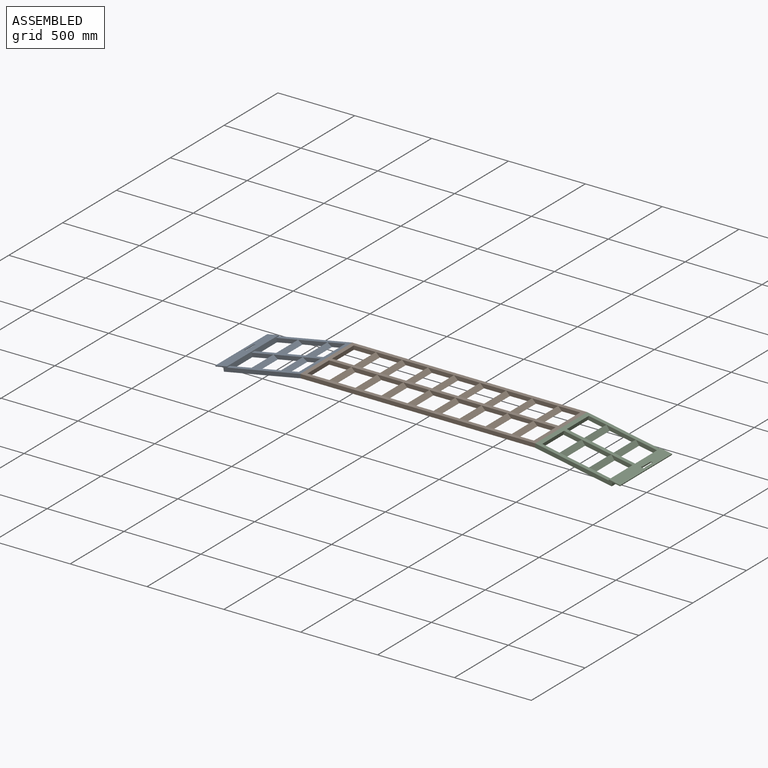
[diagram: assembled view]
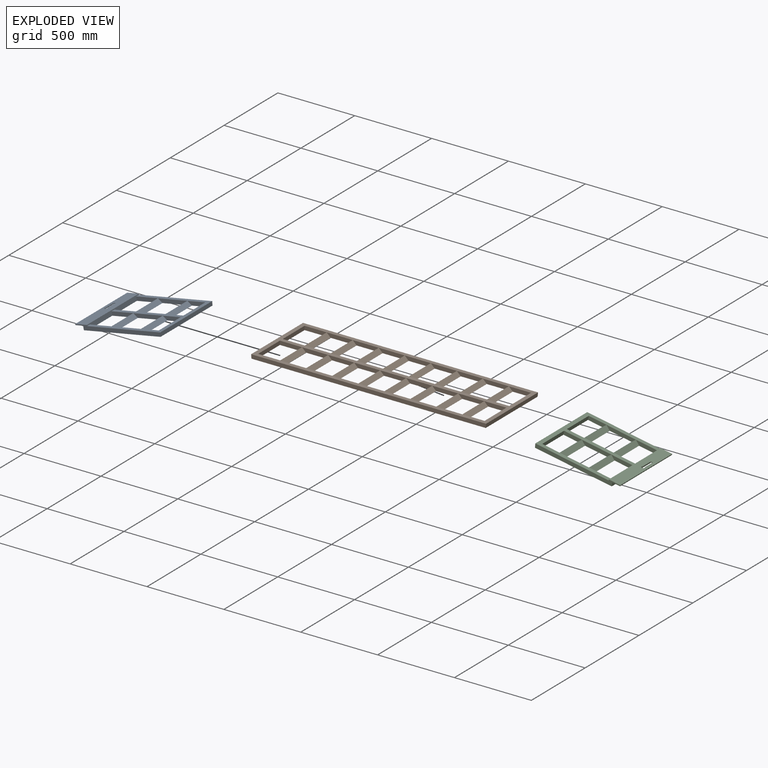
[diagram: exploded view]
GUIDED TOUR — MATED ASSEMBLY (Onshape document c1a81fce8c98519c7f79fda8, AutoMate assembly c1a81fce8c98519c7f79fda8_c8e239f8579a53e50d7dfe68_4918c3495864be379a82b760_default)

This assembly has 3 components, labeled P0..P2 below (a component is one placed occurrence of a part; the same part can appear more than once), held together by 2 mates. A mate is a constraint between two components; its type names the relative motion it leaves free:
  FASTENED — locks the two components together rigidly (no relative motion).
Axis/direction vectors are unit vectors and 'through' points are millimeter coordinates, both in the assembly's world frame.

MATES
  1. FASTENED "Fastened 1": P1 <-> P0, direction (-0.996, 0.000, -0.093) through (-655.75, 103.90, 14.36) mm
  2. FASTENED "Fastened 2": P1 <-> P2, direction (0.996, 0.000, -0.093) through (870.63, 103.90, 14.36) mm

ASSEMBLY ORDER
  1. P2 — the base component [order verified]
  2. P1 [order verified]
  3. P0 [order verified]
Order-tag legend:
  [order verified] — this step's position reverses a verified removal order: the component was checked to insert without passing through the ones already placed.

Of the 3 components, 3 carry the full construction recipe — the FeatureScript program that regenerates the part's solid from scratch; the rest are supplied as boundary geometry only.
Each toured component is shown spotlighted twice — in the assembled view, then in the exploded view, where a leader line traces a displaced component back to its assembled socket (saturated green if recipe-attached, orange if geometry-only; every other component desaturated gray) — followed by its recipe or geometry summary and the mates that hold it.
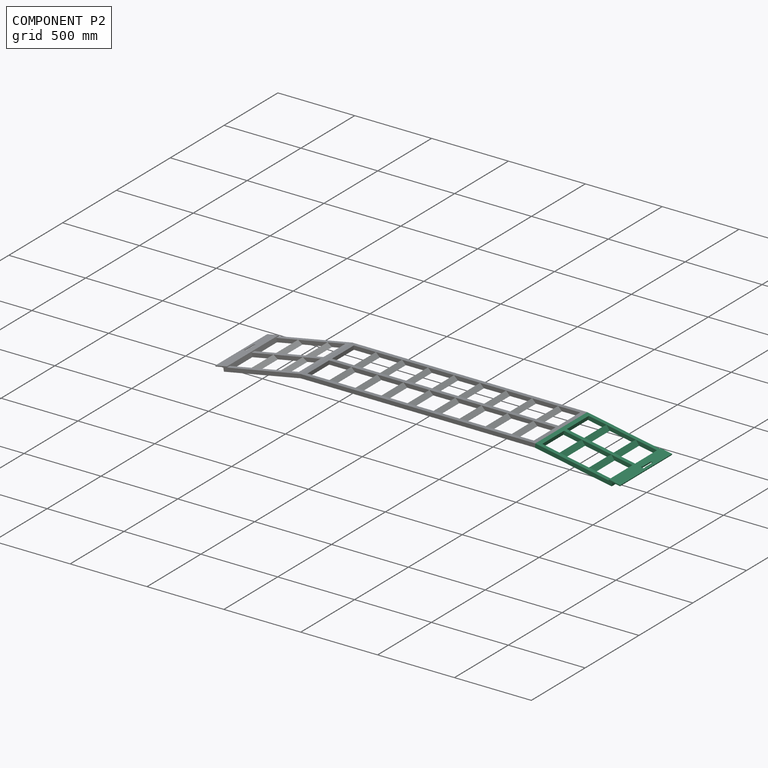
[diagram: component P2 — assembled]
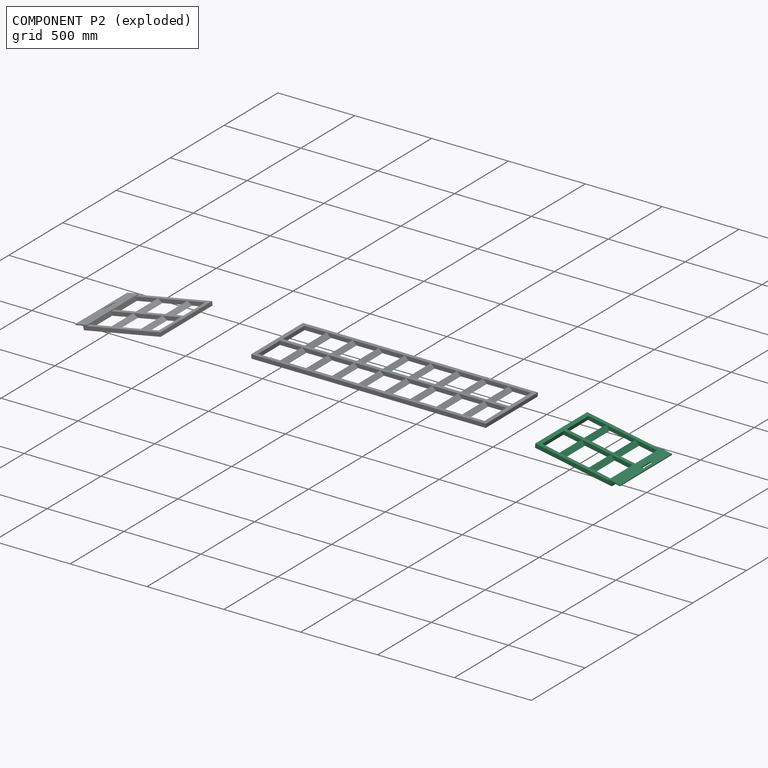
[diagram: component P2 — exploded]
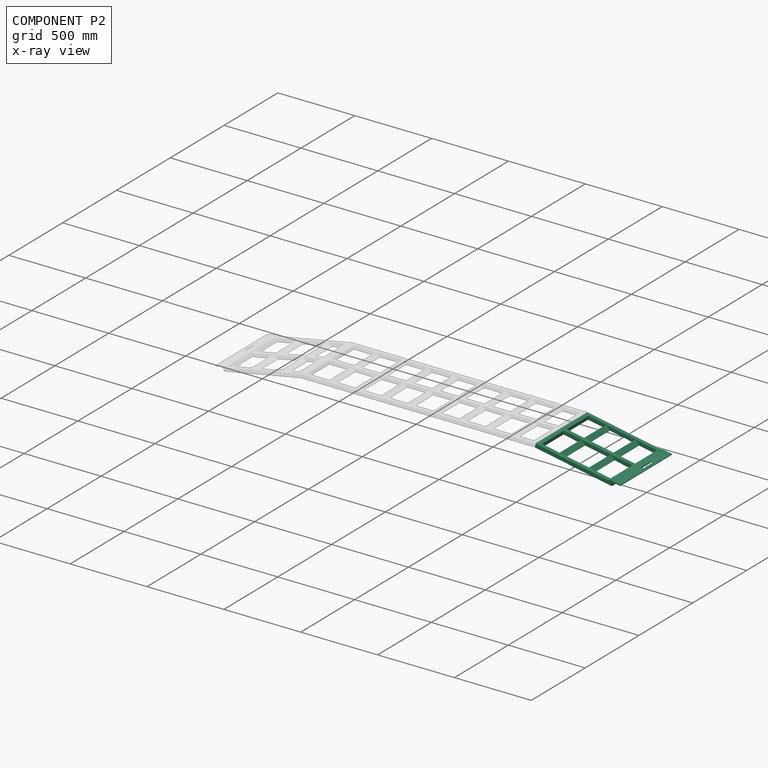
[diagram: component P2 — x-ray view]
COMPONENT P2 — recipe-attached (CADFS 00712973, mesh-verified: the recipe's output STEP matches this component's geometry to below the mesh-comparison resolution (tessellation chordal tolerance ~1.11 mm)).
Held by: FASTENED mate "Fastened 2" to P1.
Construction recipe (FeatureScript — the CAD program that rebuilds this solid; sketch coordinates are in the units given by the * unit suffixes, e.g. mm):

FeatureScript 1511;
import(path : "onshape/std/geometry.fs", version : "1511.0");
import(path : "onshape/std/common.fs", version : "1511.0");
const mm = millimeter;
const VERTEX = EntityType.VERTEX;
const EDGE = EntityType.EDGE;
const FACE = EntityType.FACE;
const BODY = EntityType.BODY;
function v(x, y){return vector(x, y);}
function OD(order){return orderDisambiguation(order);}
function OSD(set){return originalSetDisambiguation(set);}
function TD(topology){return topologyDisambiguation(topology);}
function TDD(query){return trueDependencyDisambiguation(query);}
function sQuery(a, b, c) {return sketchEntityQuery(a, b, c);}

annotation { "Feature Type Name" : "Feature", "Feature Type Description" : "" }
export const myFeature = defineFeature(function(context is Context, id is Id, definition is map)
    precondition{}
    {
        {
            var Q0;
            Q0=qCreatedBy(makeId("Front.planeOp"),FACE);
            var sketch = newSketch(context, id + "F0", { "sketchPlane" : qUnion([Q0])});
            skLineSegment(sketch, "E0.bottom", {"start": v(-12.7, 12.7) * mm, "end": v(12.7, 12.7) * mm});
            skLineSegment(sketch, "E0.top", {"start": v(-12.7, -12.7) * mm, "end": v(12.7, -12.7) * mm});
            skLineSegment(sketch, "E0.left", {"start": v(-12.7, 12.7) * mm, "end": v(-12.7, -12.7) * mm});
            skLineSegment(sketch, "E0.right", {"start": v(12.7, 12.7) * mm, "end": v(12.7, -12.7) * mm});
            skPoint(sketch, "E0.middle", {"position": v(0, 0) * mm});
            skLineSegment(sketch, "E1.0", {"start": v(-10.6, 10.6) * mm, "end": v(10.6, 10.6) * mm});
            skLineSegment(sketch, "E1.1", {"start": v(-10.6, 10.6) * mm, "end": v(-10.6, -10.6) * mm});
            skLineSegment(sketch, "E1.2", {"start": v(-10.6, -10.6) * mm, "end": v(10.6, -10.6) * mm});
            skLineSegment(sketch, "E1.3", {"start": v(10.6, 10.6) * mm, "end": v(10.6, -10.6) * mm});
            skLineSegment(sketch, "E2.1.0.0", {"start": v(12.7, 241.3) * mm, "end": v(12.7, 215.9) * mm});
            skLineSegment(sketch, "E2.1.0.1", {"start": v(-12.7, 241.3) * mm, "end": v(-12.7, 215.9) * mm});
            skLineSegment(sketch, "E2.1.0.2", {"start": v(-12.7, 215.9) * mm, "end": v(12.7, 215.9) * mm});
            skLineSegment(sketch, "E2.1.0.3", {"start": v(-12.7, 241.3) * mm, "end": v(12.7, 241.3) * mm});
            skLineSegment(sketch, "E2.1.0.4", {"start": v(-10.6, 218) * mm, "end": v(10.6, 218) * mm});
            skPoint(sketch, "E2.1.0.5", {"position": v(0, 228.6) * mm});
            skLineSegment(sketch, "E2.1.0.6", {"start": v(10.6, 239.2) * mm, "end": v(10.6, 218) * mm});
            skLineSegment(sketch, "E2.1.0.7", {"start": v(-10.6, 239.2) * mm, "end": v(10.6, 239.2) * mm});
            skLineSegment(sketch, "E2.1.0.8", {"start": v(-10.6, 239.2) * mm, "end": v(-10.6, 218) * mm});
            skLineSegment(sketch, "E2.2.0.0", {"start": v(12.7, 469.9) * mm, "end": v(12.7, 444.5) * mm});
            skLineSegment(sketch, "E2.2.0.1", {"start": v(-12.7, 469.9) * mm, "end": v(-12.7, 444.5) * mm});
            skLineSegment(sketch, "E2.2.0.2", {"start": v(-12.7, 444.5) * mm, "end": v(12.7, 444.5) * mm});
            skLineSegment(sketch, "E2.2.0.3", {"start": v(-12.7, 469.9) * mm, "end": v(12.7, 469.9) * mm});
            skLineSegment(sketch, "E2.2.0.4", {"start": v(-10.6, 446.6) * mm, "end": v(10.6, 446.6) * mm});
            skPoint(sketch, "E2.2.0.5", {"position": v(0, 457.2) * mm});
            skLineSegment(sketch, "E2.2.0.6", {"start": v(10.6, 467.8) * mm, "end": v(10.6, 446.6) * mm});
            skLineSegment(sketch, "E2.2.0.7", {"start": v(-10.6, 467.8) * mm, "end": v(10.6, 467.8) * mm});
            skLineSegment(sketch, "E2.2.0.8", {"start": v(-10.6, 467.8) * mm, "end": v(-10.6, 446.6) * mm});
            skLineSegment(sketch, "E2.direction1", {"start": v(0, 0) * mm, "end": v(0, 228.6) * mm, "construction": true});
            skSolve(sketch);
        }
        {
            var Q0;
            Q0=makeQuery(id+"F0.imprint","IMPRINT",FACE,{"disambiguationData":[TD([[makeQuery(id+"F0.imprint","IMPRINT",EDGE,{"derivedFrom":sQuery(id+"F0.wireOp",EDGE,"E2.2.0.0")}),-1.0]])]});
            var Q1;
            Q1=makeQuery(id+"F0.imprint","IMPRINT",FACE,{"disambiguationData":[TD([[makeQuery(id+"F0.imprint","IMPRINT",EDGE,{"derivedFrom":sQuery(id+"F0.wireOp",EDGE,"E2.1.0.0")}),-1.0]])]});
            var Q2;
            Q2=makeQuery(id+"F0.imprint","IMPRINT",FACE,{"disambiguationData":[TD([[makeQuery(id+"F0.imprint","IMPRINT",EDGE,{"derivedFrom":sQuery(id+"F0.wireOp",EDGE,"E0.bottom")}),-1.0]])]});
            extrude(context, id + "F1", {"entities" : qUnion([Q0, Q1, Q2]), "depth" : 508 * mm, "offsetDistance" : 25.4 * mm});
        }
        {
            var Q0;
            Q0=makeQuery(id+"F1.opExtrude","SWEPT_FACE",FACE,{"disambiguationData":[OSD([sQuery(id+"F0.wireOp",EDGE,"E2.2.0.3")])]});
            var sketch = newSketch(context, id + "F2", { "sketchPlane" : qUnion([Q0])});
            skLineSegment(sketch, "E3.bottom", {"start": v(12.7, 0) * mm, "end": v(-12.7, 0) * mm});
            skLineSegment(sketch, "E3.top", {"start": v(12.7, -25.4) * mm, "end": v(-12.7, -25.4) * mm});
            skLineSegment(sketch, "E3.left", {"start": v(12.7, 0) * mm, "end": v(12.7, -25.4) * mm});
            skLineSegment(sketch, "E3.right", {"start": v(-12.7, 0) * mm, "end": v(-12.7, -25.4) * mm});
            skLineSegment(sketch, "E4.bottom", {"start": v(-12.7, -508) * mm, "end": v(12.7, -508) * mm});
            skLineSegment(sketch, "E4.top", {"start": v(-12.7, -482.6) * mm, "end": v(12.7, -482.6) * mm});
            skLineSegment(sketch, "E4.left", {"start": v(-12.7, -508) * mm, "end": v(-12.7, -482.6) * mm});
            skLineSegment(sketch, "E4.right", {"start": v(12.7, -508) * mm, "end": v(12.7, -482.6) * mm});
            skSolve(sketch);
        }
        {
            var Q0;
            Q0=makeQuery(id+"F2.imprint","IMPRINT",FACE,{"disambiguationData":[TD([[makeQuery(id+"F2.imprint","IMPRINT",EDGE,{"derivedFrom":sQuery(id+"F2.wireOp",EDGE,"E3.bottom")}),-1.0]])]});
            var Q1;
            Q1=makeQuery(id+"F2.imprint","IMPRINT",FACE,{"disambiguationData":[TD([[makeQuery(id+"F2.imprint","IMPRINT",EDGE,{"derivedFrom":sQuery(id+"F2.wireOp",EDGE,"E4.bottom")}),1.0]])]});
            extrude(context, id + "F3", {"entities" : qUnion([Q0, Q1]), "operationType" : NewBodyOperationType.ADD, "oppositeDirection" : true, "depth" : 482.6 * mm, "offsetDistance" : 25.4 * mm});
        }
        {
            var Q0;
            Q0=makeQuery(id+"F3.boolean.opBoolean","MERGE",FACE,{"derivedFrom":[makeQuery(id+"F1.opExtrude","SWEPT_FACE",FACE,{"disambiguationData":[OSD([sQuery(id+"F0.wireOp",EDGE,"E0.left")])]}),makeQuery(id+"F1.opExtrude","SWEPT_FACE",FACE,{"disambiguationData":[OSD([sQuery(id+"F0.wireOp",EDGE,"E2.1.0.1")])]}),makeQuery(id+"F1.opExtrude","SWEPT_FACE",FACE,{"disambiguationData":[OSD([sQuery(id+"F0.wireOp",EDGE,"E2.2.0.1")])]}),makeQuery(id+"F3.opExtrude","SWEPT_FACE",FACE,{"disambiguationData":[OSD([sQuery(id+"F2.wireOp",EDGE,"E3.right")])]}),makeQuery(id+"F3.opExtrude","SWEPT_FACE",FACE,{"disambiguationData":[OSD([sQuery(id+"F2.wireOp",EDGE,"E4.left")])]})]});
            var sketch = newSketch(context, id + "F4", { "sketchPlane" : qUnion([Q0])});
            skLineSegment(sketch, "E5.bottom", {"start": v(-50.8, -12.7) * mm, "end": v(25.4, -12.7) * mm});
            skLineSegment(sketch, "E5.top", {"start": v(-50.8, 469.9) * mm, "end": v(25.4, 469.9) * mm});
            skLineSegment(sketch, "E5.left", {"start": v(-50.8, -12.7) * mm, "end": v(-50.8, 469.9) * mm});
            skLineSegment(sketch, "E5.right", {"start": v(25.4, -12.7) * mm, "end": v(25.4, 469.9) * mm});
            skArc(sketch, "E6", {"start": v(-31.75, 242.05) * mm, "mid": v(-25.4, 225.43) * mm, "end": v(-19.05, 242.05) * mm});
            skArc(sketch, "E7", {"start": v(-19.05, 311.15) * mm, "mid": v(-25.4, 317.5) * mm, "end": v(-31.75, 311.15) * mm});
            skLineSegment(sketch, "E8", {"start": v(-31.75, 311.15) * mm, "end": v(-31.75, 242.05) * mm});
            skLineSegment(sketch, "E9", {"start": v(-19.05, 311.15) * mm, "end": v(-19.05, 242.05) * mm});
            skSolve(sketch);
        }
        {
            var Q0;
            Q0 = qSketchRegion(id + "F4", true);
            extrude(context, id + "F5", {"entities" : qUnion([Q0]), "operationType" : NewBodyOperationType.ADD, "depth" : 6.35 * mm, "offsetDistance" : 25.4 * mm});
        }
        {
            var Q0;
            Q0=makeQuery(id+"F5.boolean.opBoolean","MERGE",FACE,{"derivedFrom":[makeQuery(id+"F1.opExtrude","SWEPT_FACE",FACE,{"disambiguationData":[OSD([sQuery(id+"F0.wireOp",EDGE,"E2.2.0.3")])]}),makeQuery(id+"F5.opExtrude","SWEPT_FACE",FACE,{"disambiguationData":[OSD([sQuery(id+"F4.wireOp",EDGE,"E5.top")])]})]});
            var sketch = newSketch(context, id + "F6", { "sketchPlane" : qUnion([Q0])});
            skLineSegment(sketch, "E10", {"start": v(12.7, -194.73) * mm, "end": v(-12.7, -169.33) * mm});
            skLineSegment(sketch, "E11", {"start": v(-12.7, -169.33) * mm, "end": v(12.7, -143.93) * mm});
            skLineSegment(sketch, "E12.0", {"start": v(-9.72, -169.33) * mm, "end": v(12.7, -146.91) * mm});
            skLineSegment(sketch, "E12.1", {"start": v(12.7, -191.75) * mm, "end": v(-9.72, -169.33) * mm});
            skLineSegment(sketch, "E13", {"start": v(12.7, -194.73) * mm, "end": v(12.7, -191.75) * mm});
            skLineSegment(sketch, "E14", {"start": v(12.7, -143.93) * mm, "end": v(12.7, -146.91) * mm});
            skLineSegment(sketch, "E15", {"start": v(-12.7, -266.7) * mm, "end": v(12.7, -266.7) * mm, "construction": true});
            skLineSegment(sketch, "E16.MirrorCS", {"start": v(12.7, -389.47) * mm, "end": v(12.7, -386.49) * mm});
            skLineSegment(sketch, "E17.MirrorCS", {"start": v(12.7, -338.67) * mm, "end": v(12.7, -341.65) * mm});
            skLineSegment(sketch, "E18.MirrorCS", {"start": v(-12.7, -364.07) * mm, "end": v(12.7, -389.47) * mm});
            skLineSegment(sketch, "E19.MirrorCS", {"start": v(-9.72, -364.07) * mm, "end": v(12.7, -386.49) * mm});
            skLineSegment(sketch, "E20.MirrorCS", {"start": v(12.7, -338.67) * mm, "end": v(-12.7, -364.07) * mm});
            skLineSegment(sketch, "E21.MirrorCS", {"start": v(12.7, -341.65) * mm, "end": v(-9.72, -364.07) * mm});
            skSolve(sketch);
        }
        {
            var Q0;
            Q0 = qSketchRegion(id + "F6", true);
            extrude(context, id + "F7", {"entities" : qUnion([Q0]), "operationType" : NewBodyOperationType.ADD, "oppositeDirection" : true, "depth" : 482.6 * mm, "offsetDistance" : 25.4 * mm});
        }
        {
            var Q0;
            Q0=makeQuery(id+"F5.boolean.opBoolean","MERGE",FACE,{"derivedFrom":[makeQuery(id+"F1.opExtrude","SWEPT_FACE",FACE,{"disambiguationData":[OSD([sQuery(id+"F0.wireOp",EDGE,"E2.2.0.3")])]}),makeQuery(id+"F5.opExtrude","SWEPT_FACE",FACE,{"disambiguationData":[OSD([sQuery(id+"F4.wireOp",EDGE,"E5.top")])]})]});
            var sketch = newSketch(context, id + "F8", { "sketchPlane" : qUnion([Q0])});
            skLineSegment(sketch, "E22", {"start": v(12.7, -508) * mm, "end": v(-12.7, -510.38) * mm});
            skLineSegment(sketch, "E23", {"start": v(-12.7, -510.38) * mm, "end": v(-12.7, -508) * mm});
            skLineSegment(sketch, "E24", {"start": v(-12.7, -508) * mm, "end": v(12.7, -508) * mm});
            skSolve(sketch);
        }
        {
            var Q0;
            Q0=makeQuery(id+"F8.imprint","IMPRINT",FACE,{"disambiguationData":[TD([[makeQuery(id+"F8.imprint","IMPRINT",EDGE,{"derivedFrom":sQuery(id+"F8.wireOp",EDGE,"E22")}),-1.0]])]});
            extrude(context, id + "F9", {"entities" : qUnion([Q0]), "operationType" : NewBodyOperationType.ADD, "oppositeDirection" : true, "depth" : 482.6 * mm, "offsetDistance" : 25.4 * mm});
        }
    });
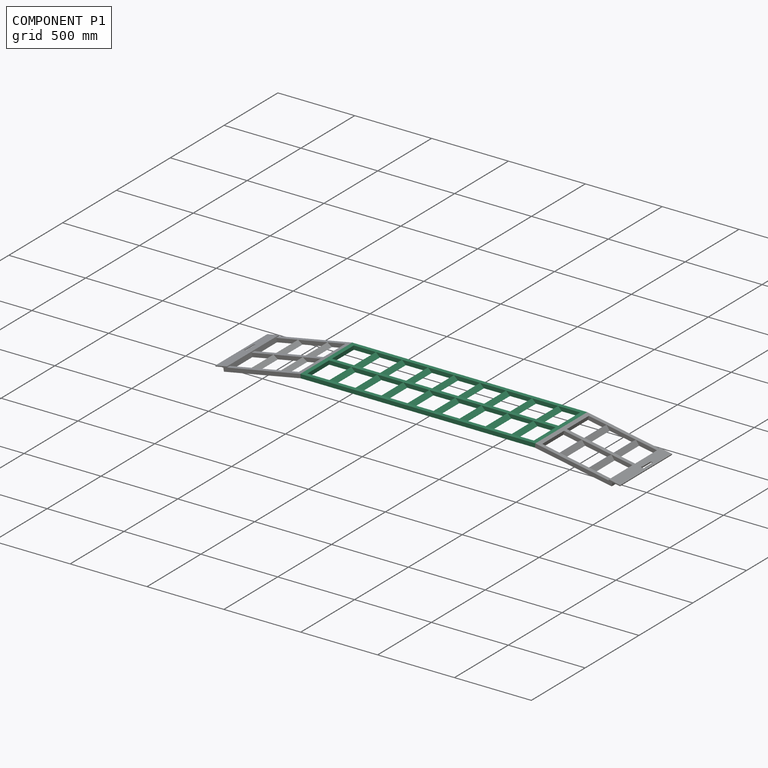
[diagram: component P1 — assembled]
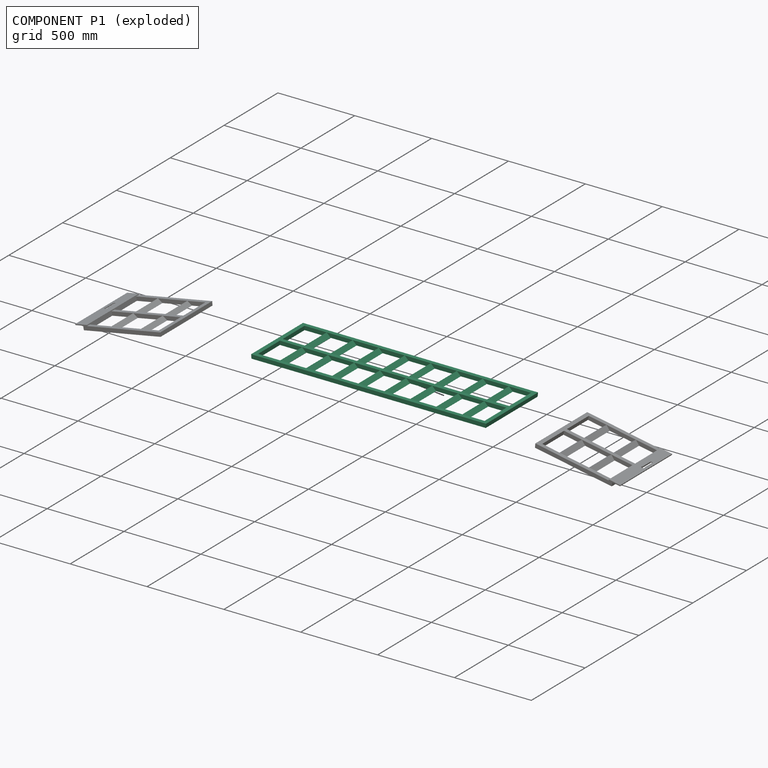
[diagram: component P1 — exploded]
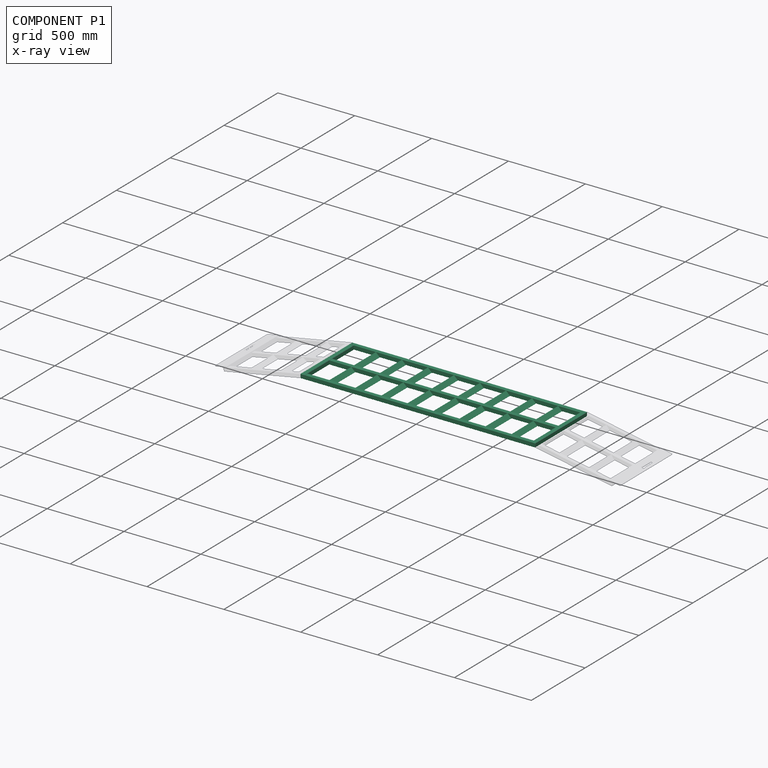
[diagram: component P1 — x-ray view]
COMPONENT P1 — recipe-attached (CADFS 00712975, mesh-verified: the recipe's output STEP matches this component's geometry to below the mesh-comparison resolution (tessellation chordal tolerance ~2.4 mm)).
Held by: FASTENED mate "Fastened 1" to P0; FASTENED mate "Fastened 2" to P2.
Construction recipe (FeatureScript — the CAD program that rebuilds this solid; sketch coordinates are in the units given by the * unit suffixes, e.g. mm):

FeatureScript 1511;
import(path : "onshape/std/geometry.fs", version : "1511.0");
import(path : "onshape/std/common.fs", version : "1511.0");
const mm = millimeter;
const VERTEX = EntityType.VERTEX;
const EDGE = EntityType.EDGE;
const FACE = EntityType.FACE;
const BODY = EntityType.BODY;
function v(x, y){return vector(x, y);}
function OD(order){return orderDisambiguation(order);}
function OSD(set){return originalSetDisambiguation(set);}
function TD(topology){return topologyDisambiguation(topology);}
function TDD(query){return trueDependencyDisambiguation(query);}
function sQuery(a, b, c) {return sketchEntityQuery(a, b, c);}

annotation { "Feature Type Name" : "Feature", "Feature Type Description" : "" }
export const myFeature = defineFeature(function(context is Context, id is Id, definition is map)
    precondition{}
    {
        {
            var Q0;
            Q0=qCreatedBy(makeId("Front.planeOp"),FACE);
            var sketch = newSketch(context, id + "F0", { "sketchPlane" : qUnion([Q0])});
            skLineSegment(sketch, "E0.bottom", {"start": v(-12.7, -211.82) * mm, "end": v(12.7, -211.82) * mm});
            skLineSegment(sketch, "E0.top", {"start": v(-12.7, -237.22) * mm, "end": v(12.7, -237.22) * mm});
            skLineSegment(sketch, "E0.left", {"start": v(-12.7, -211.82) * mm, "end": v(-12.7, -237.22) * mm});
            skLineSegment(sketch, "E0.right", {"start": v(12.7, -211.82) * mm, "end": v(12.7, -237.22) * mm});
            skPoint(sketch, "E0.middle", {"position": v(0, -224.52) * mm});
            skLineSegment(sketch, "E1.0", {"start": v(-10.6, -213.93) * mm, "end": v(10.6, -213.93) * mm});
            skLineSegment(sketch, "E1.1", {"start": v(-10.6, -213.93) * mm, "end": v(-10.6, -235.1) * mm});
            skLineSegment(sketch, "E1.2", {"start": v(-10.6, -235.1) * mm, "end": v(10.6, -235.1) * mm});
            skLineSegment(sketch, "E1.3", {"start": v(10.6, -213.93) * mm, "end": v(10.6, -235.1) * mm});
            skLineSegment(sketch, "E2.1.0.0", {"start": v(12.7, 16.78) * mm, "end": v(12.7, -8.62) * mm});
            skLineSegment(sketch, "E2.1.0.1", {"start": v(-12.7, 16.78) * mm, "end": v(-12.7, -8.62) * mm});
            skLineSegment(sketch, "E2.1.0.2", {"start": v(-12.7, -8.62) * mm, "end": v(12.7, -8.62) * mm});
            skLineSegment(sketch, "E2.1.0.3", {"start": v(-12.7, 16.78) * mm, "end": v(12.7, 16.78) * mm});
            skLineSegment(sketch, "E2.1.0.4", {"start": v(-10.6, -6.5) * mm, "end": v(10.6, -6.5) * mm});
            skPoint(sketch, "E2.1.0.5", {"position": v(0, 4.08) * mm});
            skLineSegment(sketch, "E2.1.0.6", {"start": v(10.6, 14.67) * mm, "end": v(10.6, -6.5) * mm});
            skLineSegment(sketch, "E2.1.0.7", {"start": v(-10.6, 14.67) * mm, "end": v(10.6, 14.67) * mm});
            skLineSegment(sketch, "E2.1.0.8", {"start": v(-10.6, 14.67) * mm, "end": v(-10.6, -6.5) * mm});
            skLineSegment(sketch, "E2.2.0.0", {"start": v(12.7, 245.38) * mm, "end": v(12.7, 219.98) * mm});
            skLineSegment(sketch, "E2.2.0.1", {"start": v(-12.7, 245.38) * mm, "end": v(-12.7, 219.98) * mm});
            skLineSegment(sketch, "E2.2.0.2", {"start": v(-12.7, 219.98) * mm, "end": v(12.7, 219.98) * mm});
            skLineSegment(sketch, "E2.2.0.3", {"start": v(-12.7, 245.38) * mm, "end": v(12.7, 245.38) * mm});
            skLineSegment(sketch, "E2.2.0.4", {"start": v(-10.6, 222.1) * mm, "end": v(10.6, 222.1) * mm});
            skPoint(sketch, "E2.2.0.5", {"position": v(0, 232.68) * mm});
            skLineSegment(sketch, "E2.2.0.6", {"start": v(10.6, 243.27) * mm, "end": v(10.6, 222.1) * mm});
            skLineSegment(sketch, "E2.2.0.7", {"start": v(-10.6, 243.27) * mm, "end": v(10.6, 243.27) * mm});
            skLineSegment(sketch, "E2.2.0.8", {"start": v(-10.6, 243.27) * mm, "end": v(-10.6, 222.1) * mm});
            skLineSegment(sketch, "E2.direction1", {"start": v(0, -224.52) * mm, "end": v(0, 4.08) * mm, "construction": true});
            skSolve(sketch);
        }
        {
            var Q0;
            Q0=makeQuery(id+"F0.imprint","IMPRINT",FACE,{"disambiguationData":[TD([[makeQuery(id+"F0.imprint","IMPRINT",EDGE,{"derivedFrom":sQuery(id+"F0.wireOp",EDGE,"E2.2.0.0")}),-1.0]])]});
            var Q1;
            Q1=makeQuery(id+"F0.imprint","IMPRINT",FACE,{"disambiguationData":[TD([[makeQuery(id+"F0.imprint","IMPRINT",EDGE,{"derivedFrom":sQuery(id+"F0.wireOp",EDGE,"E2.1.0.0")}),-1.0]])]});
            var Q2;
            Q2=makeQuery(id+"F0.imprint","IMPRINT",FACE,{"disambiguationData":[TD([[makeQuery(id+"F0.imprint","IMPRINT",EDGE,{"derivedFrom":sQuery(id+"F0.wireOp",EDGE,"E0.bottom")}),-1.0]])]});
            extrude(context, id + "F1", {"entities" : qUnion([Q0, Q1, Q2]), "endBound" : BoundingType.SYMMETRIC, "depth" : 1524 * mm, "offsetDistance" : 25.4 * mm});
        }
        {
            var Q0;
            Q0=makeQuery(id+"F1.opExtrude","SWEPT_FACE",FACE,{"disambiguationData":[OSD([sQuery(id+"F0.wireOp",EDGE,"E2.2.0.3")])]});
            var sketch = newSketch(context, id + "F2", { "sketchPlane" : qUnion([Q0])});
            skLineSegment(sketch, "E3.bottom", {"start": v(12.7, 762) * mm, "end": v(-12.7, 762) * mm});
            skLineSegment(sketch, "E3.top", {"start": v(12.7, 736.6) * mm, "end": v(-12.7, 736.6) * mm});
            skLineSegment(sketch, "E3.left", {"start": v(12.7, 762) * mm, "end": v(12.7, 736.6) * mm});
            skLineSegment(sketch, "E3.right", {"start": v(-12.7, 762) * mm, "end": v(-12.7, 736.6) * mm});
            skLineSegment(sketch, "E4.bottom", {"start": v(-12.7, -762) * mm, "end": v(12.7, -762) * mm});
            skLineSegment(sketch, "E4.top", {"start": v(-12.7, -736.6) * mm, "end": v(12.7, -736.6) * mm});
            skLineSegment(sketch, "E4.left", {"start": v(-12.7, -762) * mm, "end": v(-12.7, -736.6) * mm});
            skLineSegment(sketch, "E4.right", {"start": v(12.7, -762) * mm, "end": v(12.7, -736.6) * mm});
            skLineSegment(sketch, "E5.0", {"start": v(10.6, 759.9) * mm, "end": v(-10.6, 759.9) * mm});
            skLineSegment(sketch, "E5.1", {"start": v(10.6, 759.9) * mm, "end": v(10.6, 738.7) * mm});
            skLineSegment(sketch, "E5.2", {"start": v(10.6, 738.7) * mm, "end": v(-10.6, 738.7) * mm});
            skLineSegment(sketch, "E5.3", {"start": v(-10.6, 759.9) * mm, "end": v(-10.6, 738.7) * mm});
            skLineSegment(sketch, "E6.0", {"start": v(-10.6, -738.7) * mm, "end": v(10.6, -738.7) * mm});
            skLineSegment(sketch, "E6.1", {"start": v(-10.6, -759.9) * mm, "end": v(-10.6, -738.7) * mm});
            skLineSegment(sketch, "E6.2", {"start": v(-10.6, -759.9) * mm, "end": v(10.6, -759.9) * mm});
            skLineSegment(sketch, "E6.3", {"start": v(10.6, -759.9) * mm, "end": v(10.6, -738.7) * mm});
            skSolve(sketch);
        }
        {
            var Q0;
            Q0 = qSketchRegion(id + "F2", true);
            extrude(context, id + "F3", {"entities" : qUnion([Q0]), "operationType" : NewBodyOperationType.ADD, "oppositeDirection" : true, "depth" : 482.6 * mm, "offsetDistance" : 25.4 * mm});
        }
        {
            var Q0;
            Q0=makeQuery(id+"F1.opExtrude","SWEPT_FACE",FACE,{"disambiguationData":[OSD([sQuery(id+"F0.wireOp",EDGE,"E2.2.0.3")])]});
            var sketch = newSketch(context, id + "F4", { "sketchPlane" : qUnion([Q0])});
            skLineSegment(sketch, "E7", {"start": v(-12.7, 762) * mm, "end": v(12.7, 764.38) * mm});
            skLineSegment(sketch, "E8", {"start": v(12.7, 764.38) * mm, "end": v(12.7, 762) * mm});
            skLineSegment(sketch, "E9", {"start": v(12.7, 762) * mm, "end": v(-12.7, 762) * mm});
            skLineSegment(sketch, "E10", {"start": v(-12.7, 618.07) * mm, "end": v(12.7, 592.67) * mm});
            skLineSegment(sketch, "E11", {"start": v(12.7, 592.67) * mm, "end": v(-12.7, 567.27) * mm});
            skLineSegment(sketch, "E12.0", {"start": v(9.72, 592.67) * mm, "end": v(-12.7, 570.25) * mm});
            skLineSegment(sketch, "E12.1", {"start": v(-12.7, 615.09) * mm, "end": v(9.72, 592.67) * mm});
            skLineSegment(sketch, "E13", {"start": v(-12.7, 618.07) * mm, "end": v(-12.7, 615.09) * mm});
            skLineSegment(sketch, "E14", {"start": v(-12.7, 567.27) * mm, "end": v(-12.7, 570.25) * mm});
            skLineSegment(sketch, "E15.1.0.0", {"start": v(-12.7, 448.73) * mm, "end": v(12.7, 423.33) * mm});
            skLineSegment(sketch, "E15.1.0.1", {"start": v(12.7, 423.33) * mm, "end": v(-12.7, 397.93) * mm});
            skLineSegment(sketch, "E15.1.0.2", {"start": v(9.72, 423.33) * mm, "end": v(-12.7, 400.91) * mm});
            skLineSegment(sketch, "E15.1.0.3", {"start": v(-12.7, 445.75) * mm, "end": v(9.72, 423.33) * mm});
            skLineSegment(sketch, "E15.1.0.4", {"start": v(-12.7, 448.73) * mm, "end": v(-12.7, 445.75) * mm});
            skLineSegment(sketch, "E15.1.0.5", {"start": v(-12.7, 397.93) * mm, "end": v(-12.7, 400.91) * mm});
            skLineSegment(sketch, "E15.2.0.0", {"start": v(-12.7, 279.4) * mm, "end": v(12.7, 254) * mm});
            skLineSegment(sketch, "E15.2.0.1", {"start": v(12.7, 254) * mm, "end": v(-12.7, 228.6) * mm});
            skLineSegment(sketch, "E15.2.0.2", {"start": v(9.72, 254) * mm, "end": v(-12.7, 231.58) * mm});
            skLineSegment(sketch, "E15.2.0.3", {"start": v(-12.7, 276.42) * mm, "end": v(9.72, 254) * mm});
            skLineSegment(sketch, "E15.2.0.4", {"start": v(-12.7, 279.4) * mm, "end": v(-12.7, 276.42) * mm});
            skLineSegment(sketch, "E15.2.0.5", {"start": v(-12.7, 228.6) * mm, "end": v(-12.7, 231.58) * mm});
            skLineSegment(sketch, "E15.3.0.0", {"start": v(-12.7, 110.07) * mm, "end": v(12.7, 84.67) * mm});
            skLineSegment(sketch, "E15.3.0.1", {"start": v(12.7, 84.67) * mm, "end": v(-12.7, 59.27) * mm});
            skLineSegment(sketch, "E15.3.0.2", {"start": v(9.72, 84.67) * mm, "end": v(-12.7, 62.25) * mm});
            skLineSegment(sketch, "E15.3.0.3", {"start": v(-12.7, 107.09) * mm, "end": v(9.72, 84.67) * mm});
            skLineSegment(sketch, "E15.3.0.4", {"start": v(-12.7, 110.07) * mm, "end": v(-12.7, 107.09) * mm});
            skLineSegment(sketch, "E15.3.0.5", {"start": v(-12.7, 59.27) * mm, "end": v(-12.7, 62.25) * mm});
            skLineSegment(sketch, "E15.direction1", {"start": v(-12.7, 567.27) * mm, "end": v(-12.7, 397.93) * mm, "construction": true});
            skLineSegment(sketch, "E16.MirrorCS", {"start": v(-12.7, -618.07) * mm, "end": v(-12.7, -615.09) * mm});
            skLineSegment(sketch, "E17.MirrorCS", {"start": v(-12.7, -228.6) * mm, "end": v(-12.7, -231.58) * mm});
            skLineSegment(sketch, "E18.MirrorCS", {"start": v(-12.7, -567.27) * mm, "end": v(-12.7, -570.25) * mm});
            skLineSegment(sketch, "E19.MirrorCS", {"start": v(-12.7, -618.07) * mm, "end": v(12.7, -592.67) * mm});
            skLineSegment(sketch, "E20.MirrorCS", {"start": v(12.7, -764.38) * mm, "end": v(12.7, -762) * mm});
            skLineSegment(sketch, "E21.MirrorCS", {"start": v(-12.7, -762) * mm, "end": v(12.7, -764.38) * mm});
            skLineSegment(sketch, "E22.MirrorCS", {"start": v(-12.7, -397.93) * mm, "end": v(-12.7, -400.91) * mm});
            skLineSegment(sketch, "E23.MirrorCS", {"start": v(12.7, -254) * mm, "end": v(-12.7, -228.6) * mm});
            skLineSegment(sketch, "E24.MirrorCS", {"start": v(-12.7, -448.73) * mm, "end": v(-12.7, -445.75) * mm});
            skLineSegment(sketch, "E25.MirrorCS", {"start": v(9.72, -254) * mm, "end": v(-12.7, -231.58) * mm});
            skLineSegment(sketch, "E26.MirrorCS", {"start": v(-12.7, -107.09) * mm, "end": v(9.72, -84.67) * mm});
            skLineSegment(sketch, "E27.MirrorCS", {"start": v(-12.7, -445.75) * mm, "end": v(9.72, -423.33) * mm});
            skLineSegment(sketch, "E28.MirrorCS", {"start": v(9.72, -423.33) * mm, "end": v(-12.7, -400.91) * mm});
            skLineSegment(sketch, "E29.MirrorCS", {"start": v(-12.7, -448.73) * mm, "end": v(12.7, -423.33) * mm});
            skLineSegment(sketch, "E30.MirrorCS", {"start": v(-12.7, -615.09) * mm, "end": v(9.72, -592.67) * mm});
            skLineSegment(sketch, "E31.MirrorCS", {"start": v(9.72, -592.67) * mm, "end": v(-12.7, -570.25) * mm});
            skLineSegment(sketch, "E32.MirrorCS", {"start": v(12.7, -762) * mm, "end": v(-12.7, -762) * mm});
            skLineSegment(sketch, "E33.MirrorCS", {"start": v(9.72, -84.67) * mm, "end": v(-12.7, -62.25) * mm});
            skLineSegment(sketch, "E34.MirrorCS", {"start": v(-12.7, -276.42) * mm, "end": v(9.72, -254) * mm});
            skLineSegment(sketch, "E35.MirrorCS", {"start": v(-12.7, -59.27) * mm, "end": v(-12.7, -62.25) * mm});
            skLineSegment(sketch, "E36.MirrorCS", {"start": v(-12.7, -279.4) * mm, "end": v(-12.7, -276.42) * mm});
            skLineSegment(sketch, "E37.MirrorCS", {"start": v(-12.7, -110.07) * mm, "end": v(-12.7, -107.09) * mm});
            skLineSegment(sketch, "E38.MirrorCS", {"start": v(12.7, -592.67) * mm, "end": v(-12.7, -567.27) * mm});
            skLineSegment(sketch, "E39.MirrorCS", {"start": v(-12.7, -110.07) * mm, "end": v(12.7, -84.67) * mm});
            skLineSegment(sketch, "E40.MirrorCS", {"start": v(12.7, -423.33) * mm, "end": v(-12.7, -397.93) * mm});
            skLineSegment(sketch, "E41.MirrorCS", {"start": v(-12.7, -279.4) * mm, "end": v(12.7, -254) * mm});
            skLineSegment(sketch, "E42.MirrorCS", {"start": v(-12.7, -567.27) * mm, "end": v(-12.7, -397.93) * mm, "construction": true});
            skLineSegment(sketch, "E43.MirrorCS", {"start": v(12.7, -84.67) * mm, "end": v(-12.7, -59.27) * mm});
            skSolve(sketch);
        }
        {
            var Q0;
            Q0 = qSketchRegion(id + "F4", true);
            extrude(context, id + "F5", {"entities" : qUnion([Q0]), "operationType" : NewBodyOperationType.ADD, "oppositeDirection" : true, "depth" : 482.6 * mm, "offsetDistance" : 25.4 * mm});
        }
    });
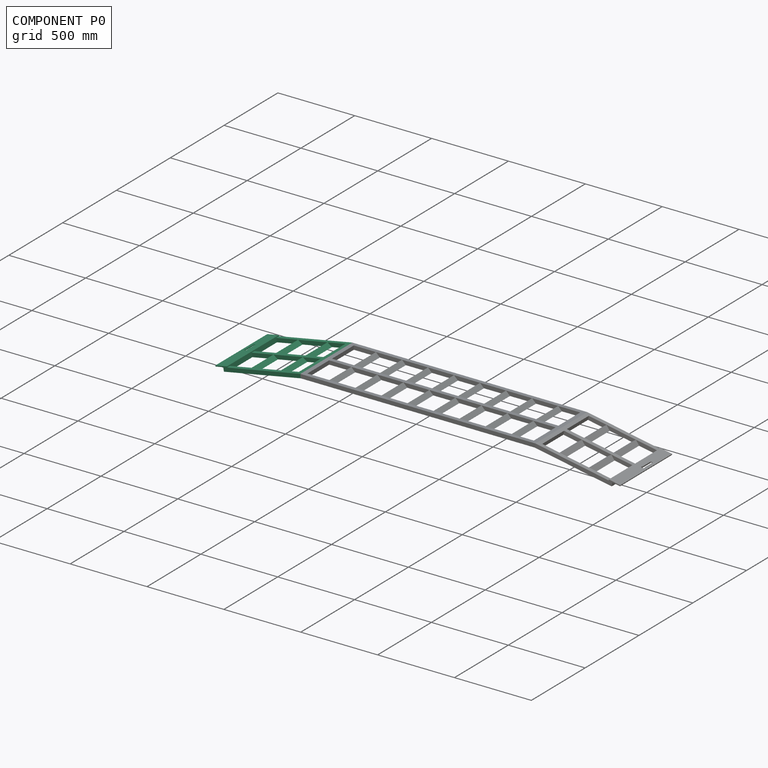
[diagram: component P0 — assembled]
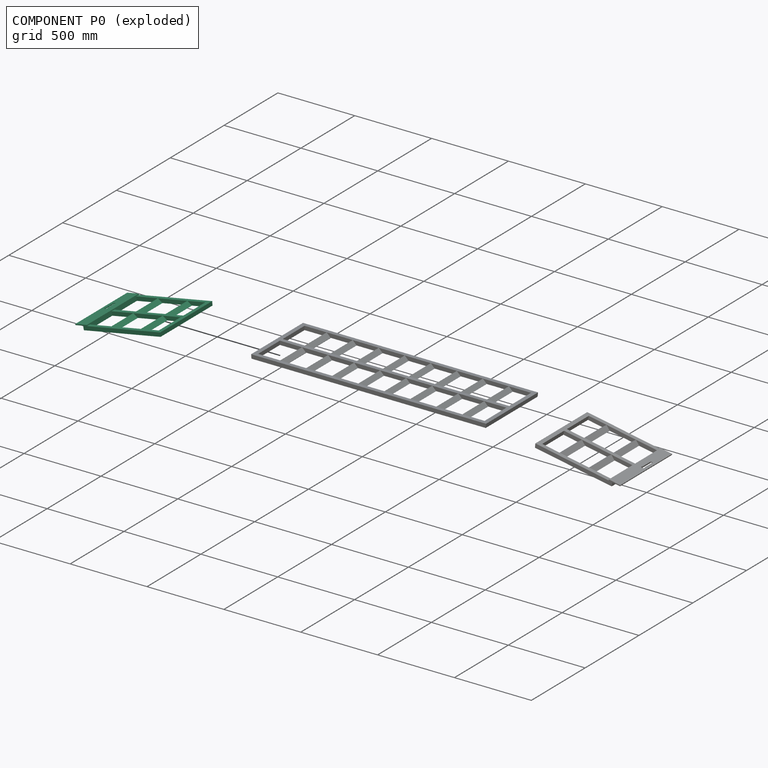
[diagram: component P0 — exploded]
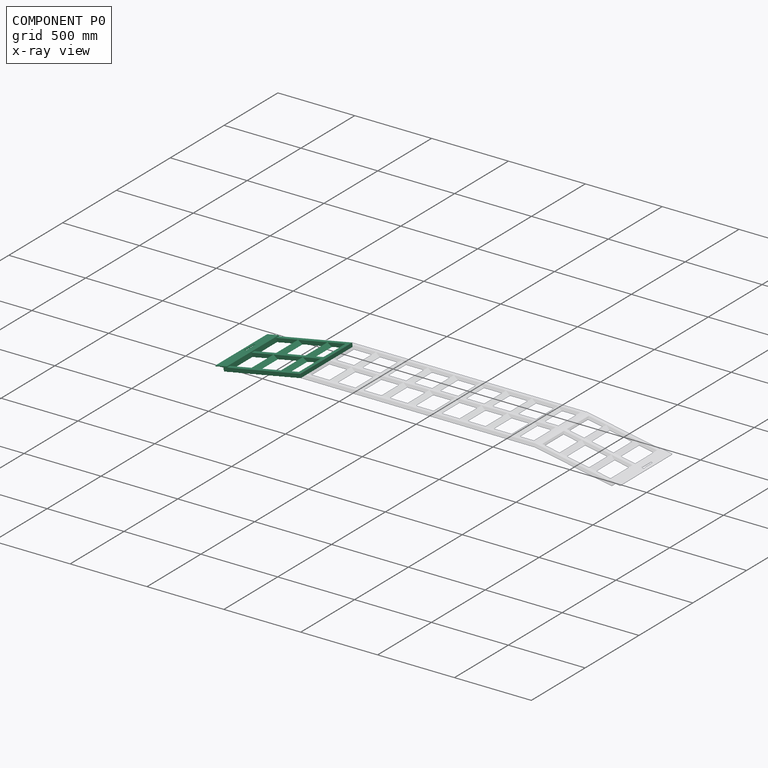
[diagram: component P0 — x-ray view]
COMPONENT P0 — recipe-attached (CADFS 00712973, mesh-verified: the recipe's output STEP matches this component's geometry to below the mesh-comparison resolution (tessellation chordal tolerance ~1.11 mm)).
Held by: FASTENED mate "Fastened 1" to P1.
Construction recipe (FeatureScript — the CAD program that rebuilds this solid; sketch coordinates are in the units given by the * unit suffixes, e.g. mm):

FeatureScript 1511;
import(path : "onshape/std/geometry.fs", version : "1511.0");
import(path : "onshape/std/common.fs", version : "1511.0");
const mm = millimeter;
const VERTEX = EntityType.VERTEX;
const EDGE = EntityType.EDGE;
const FACE = EntityType.FACE;
const BODY = EntityType.BODY;
function v(x, y){return vector(x, y);}
function OD(order){return orderDisambiguation(order);}
function OSD(set){return originalSetDisambiguation(set);}
function TD(topology){return topologyDisambiguation(topology);}
function TDD(query){return trueDependencyDisambiguation(query);}
function sQuery(a, b, c) {return sketchEntityQuery(a, b, c);}

annotation { "Feature Type Name" : "Feature", "Feature Type Description" : "" }
export const myFeature = defineFeature(function(context is Context, id is Id, definition is map)
    precondition{}
    {
        {
            var Q0;
            Q0=qCreatedBy(makeId("Front.planeOp"),FACE);
            var sketch = newSketch(context, id + "F0", { "sketchPlane" : qUnion([Q0])});
            skLineSegment(sketch, "E0.bottom", {"start": v(-12.7, 12.7) * mm, "end": v(12.7, 12.7) * mm});
            skLineSegment(sketch, "E0.top", {"start": v(-12.7, -12.7) * mm, "end": v(12.7, -12.7) * mm});
            skLineSegment(sketch, "E0.left", {"start": v(-12.7, 12.7) * mm, "end": v(-12.7, -12.7) * mm});
            skLineSegment(sketch, "E0.right", {"start": v(12.7, 12.7) * mm, "end": v(12.7, -12.7) * mm});
            skPoint(sketch, "E0.middle", {"position": v(0, 0) * mm});
            skLineSegment(sketch, "E1.0", {"start": v(-10.6, 10.6) * mm, "end": v(10.6, 10.6) * mm});
            skLineSegment(sketch, "E1.1", {"start": v(-10.6, 10.6) * mm, "end": v(-10.6, -10.6) * mm});
            skLineSegment(sketch, "E1.2", {"start": v(-10.6, -10.6) * mm, "end": v(10.6, -10.6) * mm});
            skLineSegment(sketch, "E1.3", {"start": v(10.6, 10.6) * mm, "end": v(10.6, -10.6) * mm});
            skLineSegment(sketch, "E2.1.0.0", {"start": v(12.7, 241.3) * mm, "end": v(12.7, 215.9) * mm});
            skLineSegment(sketch, "E2.1.0.1", {"start": v(-12.7, 241.3) * mm, "end": v(-12.7, 215.9) * mm});
            skLineSegment(sketch, "E2.1.0.2", {"start": v(-12.7, 215.9) * mm, "end": v(12.7, 215.9) * mm});
            skLineSegment(sketch, "E2.1.0.3", {"start": v(-12.7, 241.3) * mm, "end": v(12.7, 241.3) * mm});
            skLineSegment(sketch, "E2.1.0.4", {"start": v(-10.6, 218) * mm, "end": v(10.6, 218) * mm});
            skPoint(sketch, "E2.1.0.5", {"position": v(0, 228.6) * mm});
            skLineSegment(sketch, "E2.1.0.6", {"start": v(10.6, 239.2) * mm, "end": v(10.6, 218) * mm});
            skLineSegment(sketch, "E2.1.0.7", {"start": v(-10.6, 239.2) * mm, "end": v(10.6, 239.2) * mm});
            skLineSegment(sketch, "E2.1.0.8", {"start": v(-10.6, 239.2) * mm, "end": v(-10.6, 218) * mm});
            skLineSegment(sketch, "E2.2.0.0", {"start": v(12.7, 469.9) * mm, "end": v(12.7, 444.5) * mm});
            skLineSegment(sketch, "E2.2.0.1", {"start": v(-12.7, 469.9) * mm, "end": v(-12.7, 444.5) * mm});
            skLineSegment(sketch, "E2.2.0.2", {"start": v(-12.7, 444.5) * mm, "end": v(12.7, 444.5) * mm});
            skLineSegment(sketch, "E2.2.0.3", {"start": v(-12.7, 469.9) * mm, "end": v(12.7, 469.9) * mm});
            skLineSegment(sketch, "E2.2.0.4", {"start": v(-10.6, 446.6) * mm, "end": v(10.6, 446.6) * mm});
            skPoint(sketch, "E2.2.0.5", {"position": v(0, 457.2) * mm});
            skLineSegment(sketch, "E2.2.0.6", {"start": v(10.6, 467.8) * mm, "end": v(10.6, 446.6) * mm});
            skLineSegment(sketch, "E2.2.0.7", {"start": v(-10.6, 467.8) * mm, "end": v(10.6, 467.8) * mm});
            skLineSegment(sketch, "E2.2.0.8", {"start": v(-10.6, 467.8) * mm, "end": v(-10.6, 446.6) * mm});
            skLineSegment(sketch, "E2.direction1", {"start": v(0, 0) * mm, "end": v(0, 228.6) * mm, "construction": true});
            skSolve(sketch);
        }
        {
            var Q0;
            Q0=makeQuery(id+"F0.imprint","IMPRINT",FACE,{"disambiguationData":[TD([[makeQuery(id+"F0.imprint","IMPRINT",EDGE,{"derivedFrom":sQuery(id+"F0.wireOp",EDGE,"E2.2.0.0")}),-1.0]])]});
            var Q1;
            Q1=makeQuery(id+"F0.imprint","IMPRINT",FACE,{"disambiguationData":[TD([[makeQuery(id+"F0.imprint","IMPRINT",EDGE,{"derivedFrom":sQuery(id+"F0.wireOp",EDGE,"E2.1.0.0")}),-1.0]])]});
            var Q2;
            Q2=makeQuery(id+"F0.imprint","IMPRINT",FACE,{"disambiguationData":[TD([[makeQuery(id+"F0.imprint","IMPRINT",EDGE,{"derivedFrom":sQuery(id+"F0.wireOp",EDGE,"E0.bottom")}),-1.0]])]});
            extrude(context, id + "F1", {"entities" : qUnion([Q0, Q1, Q2]), "depth" : 508 * mm, "offsetDistance" : 25.4 * mm});
        }
        {
            var Q0;
            Q0=makeQuery(id+"F1.opExtrude","SWEPT_FACE",FACE,{"disambiguationData":[OSD([sQuery(id+"F0.wireOp",EDGE,"E2.2.0.3")])]});
            var sketch = newSketch(context, id + "F2", { "sketchPlane" : qUnion([Q0])});
            skLineSegment(sketch, "E3.bottom", {"start": v(12.7, 0) * mm, "end": v(-12.7, 0) * mm});
            skLineSegment(sketch, "E3.top", {"start": v(12.7, -25.4) * mm, "end": v(-12.7, -25.4) * mm});
            skLineSegment(sketch, "E3.left", {"start": v(12.7, 0) * mm, "end": v(12.7, -25.4) * mm});
            skLineSegment(sketch, "E3.right", {"start": v(-12.7, 0) * mm, "end": v(-12.7, -25.4) * mm});
            skLineSegment(sketch, "E4.bottom", {"start": v(-12.7, -508) * mm, "end": v(12.7, -508) * mm});
            skLineSegment(sketch, "E4.top", {"start": v(-12.7, -482.6) * mm, "end": v(12.7, -482.6) * mm});
            skLineSegment(sketch, "E4.left", {"start": v(-12.7, -508) * mm, "end": v(-12.7, -482.6) * mm});
            skLineSegment(sketch, "E4.right", {"start": v(12.7, -508) * mm, "end": v(12.7, -482.6) * mm});
            skSolve(sketch);
        }
        {
            var Q0;
            Q0=makeQuery(id+"F2.imprint","IMPRINT",FACE,{"disambiguationData":[TD([[makeQuery(id+"F2.imprint","IMPRINT",EDGE,{"derivedFrom":sQuery(id+"F2.wireOp",EDGE,"E3.bottom")}),-1.0]])]});
            var Q1;
            Q1=makeQuery(id+"F2.imprint","IMPRINT",FACE,{"disambiguationData":[TD([[makeQuery(id+"F2.imprint","IMPRINT",EDGE,{"derivedFrom":sQuery(id+"F2.wireOp",EDGE,"E4.bottom")}),1.0]])]});
            extrude(context, id + "F3", {"entities" : qUnion([Q0, Q1]), "operationType" : NewBodyOperationType.ADD, "oppositeDirection" : true, "depth" : 482.6 * mm, "offsetDistance" : 25.4 * mm});
        }
        {
            var Q0;
            Q0=makeQuery(id+"F3.boolean.opBoolean","MERGE",FACE,{"derivedFrom":[makeQuery(id+"F1.opExtrude","SWEPT_FACE",FACE,{"disambiguationData":[OSD([sQuery(id+"F0.wireOp",EDGE,"E0.left")])]}),makeQuery(id+"F1.opExtrude","SWEPT_FACE",FACE,{"disambiguationData":[OSD([sQuery(id+"F0.wireOp",EDGE,"E2.1.0.1")])]}),makeQuery(id+"F1.opExtrude","SWEPT_FACE",FACE,{"disambiguationData":[OSD([sQuery(id+"F0.wireOp",EDGE,"E2.2.0.1")])]}),makeQuery(id+"F3.opExtrude","SWEPT_FACE",FACE,{"disambiguationData":[OSD([sQuery(id+"F2.wireOp",EDGE,"E3.right")])]}),makeQuery(id+"F3.opExtrude","SWEPT_FACE",FACE,{"disambiguationData":[OSD([sQuery(id+"F2.wireOp",EDGE,"E4.left")])]})]});
            var sketch = newSketch(context, id + "F4", { "sketchPlane" : qUnion([Q0])});
            skLineSegment(sketch, "E5.bottom", {"start": v(-50.8, -12.7) * mm, "end": v(25.4, -12.7) * mm});
            skLineSegment(sketch, "E5.top", {"start": v(-50.8, 469.9) * mm, "end": v(25.4, 469.9) * mm});
            skLineSegment(sketch, "E5.left", {"start": v(-50.8, -12.7) * mm, "end": v(-50.8, 469.9) * mm});
            skLineSegment(sketch, "E5.right", {"start": v(25.4, -12.7) * mm, "end": v(25.4, 469.9) * mm});
            skArc(sketch, "E6", {"start": v(-31.75, 242.05) * mm, "mid": v(-25.4, 225.43) * mm, "end": v(-19.05, 242.05) * mm});
            skArc(sketch, "E7", {"start": v(-19.05, 311.15) * mm, "mid": v(-25.4, 317.5) * mm, "end": v(-31.75, 311.15) * mm});
            skLineSegment(sketch, "E8", {"start": v(-31.75, 311.15) * mm, "end": v(-31.75, 242.05) * mm});
            skLineSegment(sketch, "E9", {"start": v(-19.05, 311.15) * mm, "end": v(-19.05, 242.05) * mm});
            skSolve(sketch);
        }
        {
            var Q0;
            Q0 = qSketchRegion(id + "F4", true);
            extrude(context, id + "F5", {"entities" : qUnion([Q0]), "operationType" : NewBodyOperationType.ADD, "depth" : 6.35 * mm, "offsetDistance" : 25.4 * mm});
        }
        {
            var Q0;
            Q0=makeQuery(id+"F5.boolean.opBoolean","MERGE",FACE,{"derivedFrom":[makeQuery(id+"F1.opExtrude","SWEPT_FACE",FACE,{"disambiguationData":[OSD([sQuery(id+"F0.wireOp",EDGE,"E2.2.0.3")])]}),makeQuery(id+"F5.opExtrude","SWEPT_FACE",FACE,{"disambiguationData":[OSD([sQuery(id+"F4.wireOp",EDGE,"E5.top")])]})]});
            var sketch = newSketch(context, id + "F6", { "sketchPlane" : qUnion([Q0])});
            skLineSegment(sketch, "E10", {"start": v(12.7, -194.73) * mm, "end": v(-12.7, -169.33) * mm});
            skLineSegment(sketch, "E11", {"start": v(-12.7, -169.33) * mm, "end": v(12.7, -143.93) * mm});
            skLineSegment(sketch, "E12.0", {"start": v(-9.72, -169.33) * mm, "end": v(12.7, -146.91) * mm});
            skLineSegment(sketch, "E12.1", {"start": v(12.7, -191.75) * mm, "end": v(-9.72, -169.33) * mm});
            skLineSegment(sketch, "E13", {"start": v(12.7, -194.73) * mm, "end": v(12.7, -191.75) * mm});
            skLineSegment(sketch, "E14", {"start": v(12.7, -143.93) * mm, "end": v(12.7, -146.91) * mm});
            skLineSegment(sketch, "E15", {"start": v(-12.7, -266.7) * mm, "end": v(12.7, -266.7) * mm, "construction": true});
            skLineSegment(sketch, "E16.MirrorCS", {"start": v(12.7, -389.47) * mm, "end": v(12.7, -386.49) * mm});
            skLineSegment(sketch, "E17.MirrorCS", {"start": v(12.7, -338.67) * mm, "end": v(12.7, -341.65) * mm});
            skLineSegment(sketch, "E18.MirrorCS", {"start": v(-12.7, -364.07) * mm, "end": v(12.7, -389.47) * mm});
            skLineSegment(sketch, "E19.MirrorCS", {"start": v(-9.72, -364.07) * mm, "end": v(12.7, -386.49) * mm});
            skLineSegment(sketch, "E20.MirrorCS", {"start": v(12.7, -338.67) * mm, "end": v(-12.7, -364.07) * mm});
            skLineSegment(sketch, "E21.MirrorCS", {"start": v(12.7, -341.65) * mm, "end": v(-9.72, -364.07) * mm});
            skSolve(sketch);
        }
        {
            var Q0;
            Q0 = qSketchRegion(id + "F6", true);
            extrude(context, id + "F7", {"entities" : qUnion([Q0]), "operationType" : NewBodyOperationType.ADD, "oppositeDirection" : true, "depth" : 482.6 * mm, "offsetDistance" : 25.4 * mm});
        }
        {
            var Q0;
            Q0=makeQuery(id+"F5.boolean.opBoolean","MERGE",FACE,{"derivedFrom":[makeQuery(id+"F1.opExtrude","SWEPT_FACE",FACE,{"disambiguationData":[OSD([sQuery(id+"F0.wireOp",EDGE,"E2.2.0.3")])]}),makeQuery(id+"F5.opExtrude","SWEPT_FACE",FACE,{"disambiguationData":[OSD([sQuery(id+"F4.wireOp",EDGE,"E5.top")])]})]});
            var sketch = newSketch(context, id + "F8", { "sketchPlane" : qUnion([Q0])});
            skLineSegment(sketch, "E22", {"start": v(12.7, -508) * mm, "end": v(-12.7, -510.38) * mm});
            skLineSegment(sketch, "E23", {"start": v(-12.7, -510.38) * mm, "end": v(-12.7, -508) * mm});
            skLineSegment(sketch, "E24", {"start": v(-12.7, -508) * mm, "end": v(12.7, -508) * mm});
            skSolve(sketch);
        }
        {
            var Q0;
            Q0=makeQuery(id+"F8.imprint","IMPRINT",FACE,{"disambiguationData":[TD([[makeQuery(id+"F8.imprint","IMPRINT",EDGE,{"derivedFrom":sQuery(id+"F8.wireOp",EDGE,"E22")}),-1.0]])]});
            extrude(context, id + "F9", {"entities" : qUnion([Q0]), "operationType" : NewBodyOperationType.ADD, "oppositeDirection" : true, "depth" : 482.6 * mm, "offsetDistance" : 25.4 * mm});
        }
    });
PROVENANCE & LICENSES
Assembly (occurrences, transforms, mates, per-part STEP geometry): AutoMate dataset, Zenodo record 7776208, CC0.
Construction recipes: CADFS (HuggingFace VladPyatov/CADFS, CC-BY-4.0, layered over the ABC dataset), FeatureScript reconstruction programs keyed by ABC model id.
Join: ABC meta listings map ABC model id -> Onshape documentId; within a shared document, parts are matched by geometric signature (bounding-box dims + volume at 0.1% relative tolerance, exact B-rep face/solid counts).
Verification: 3 of this assembly's 3 components carry a recipe attachment, and every attachment is mesh-verified: the CADFS STEP and the AutoMate member STEP were compared as meshes in their shared local frame (symmetric sampled-point-to-mesh distance); worst across the 3 attachments: below the mesh-comparison resolution (tessellation chordal tolerance ~2.4 mm) on a 1603 mm part.
Renders: orthographic iso camera (az 35 / el 25); the floor grid conveys scale (grid pitch printed in each image; no ruler). In the exploded view each component is displaced by its stored offset vector: the offsets alone carry the explosion direction (mate normal/axis signs are not orientation cues and do not encode it), and separation distances are assigned per mate-chain, not proportionally to assembly-order depth.
